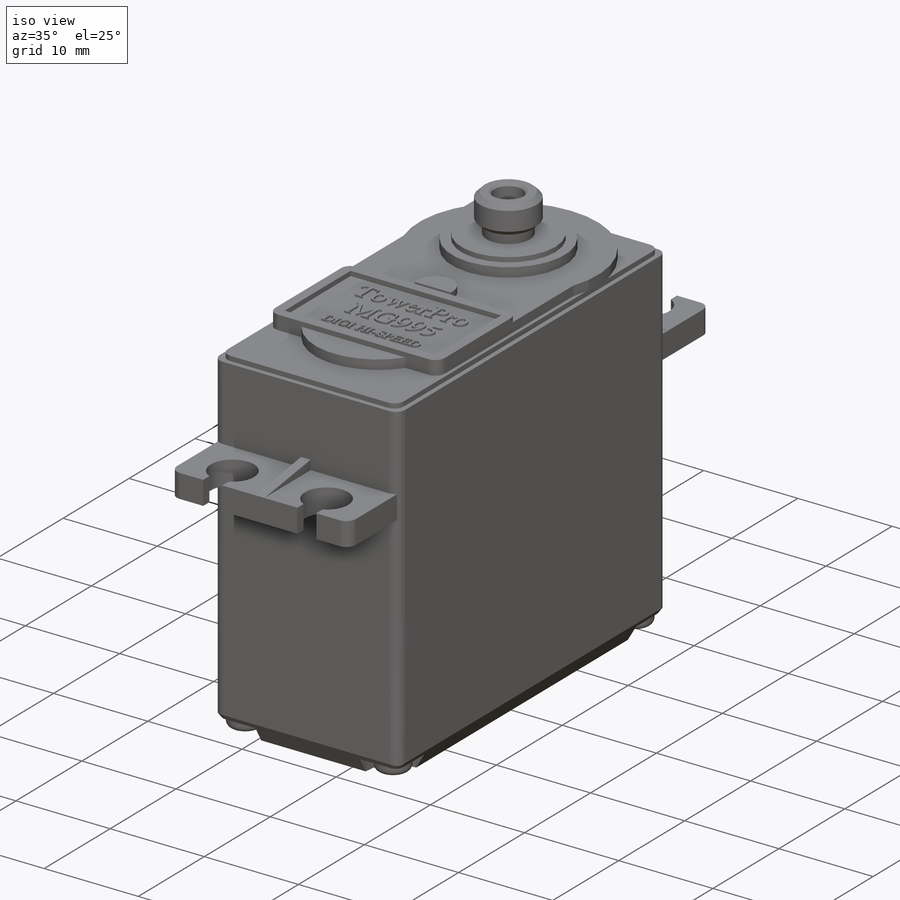
[diagram: iso view]
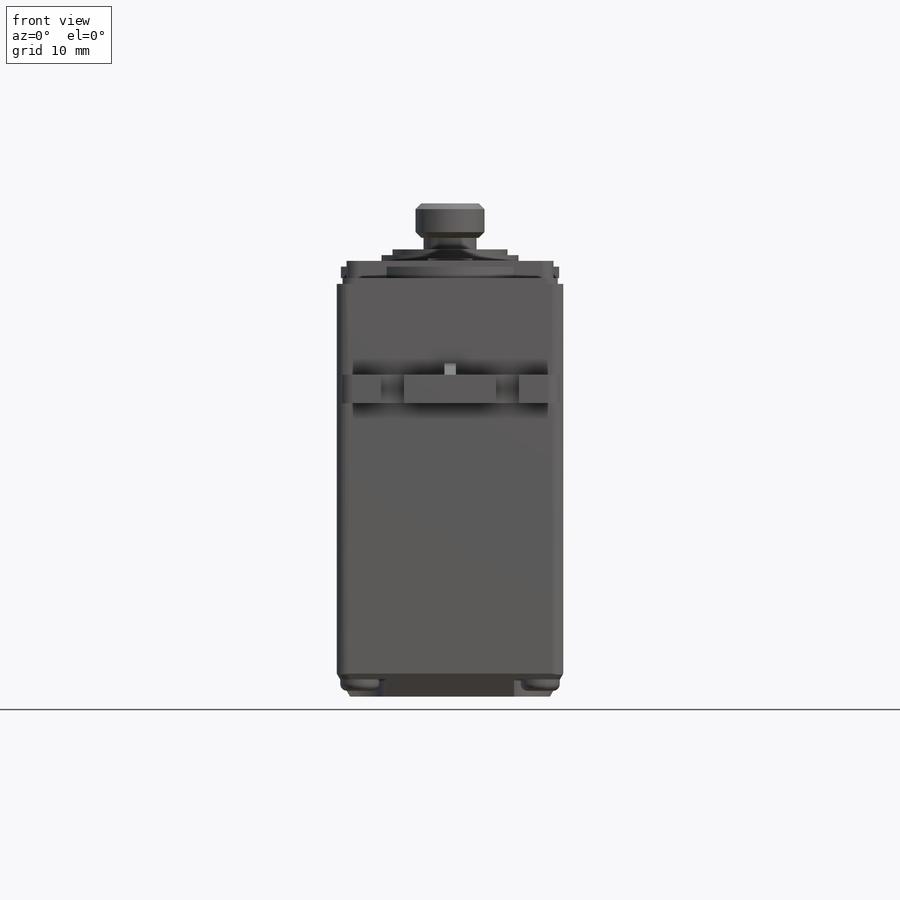
[diagram: front view]
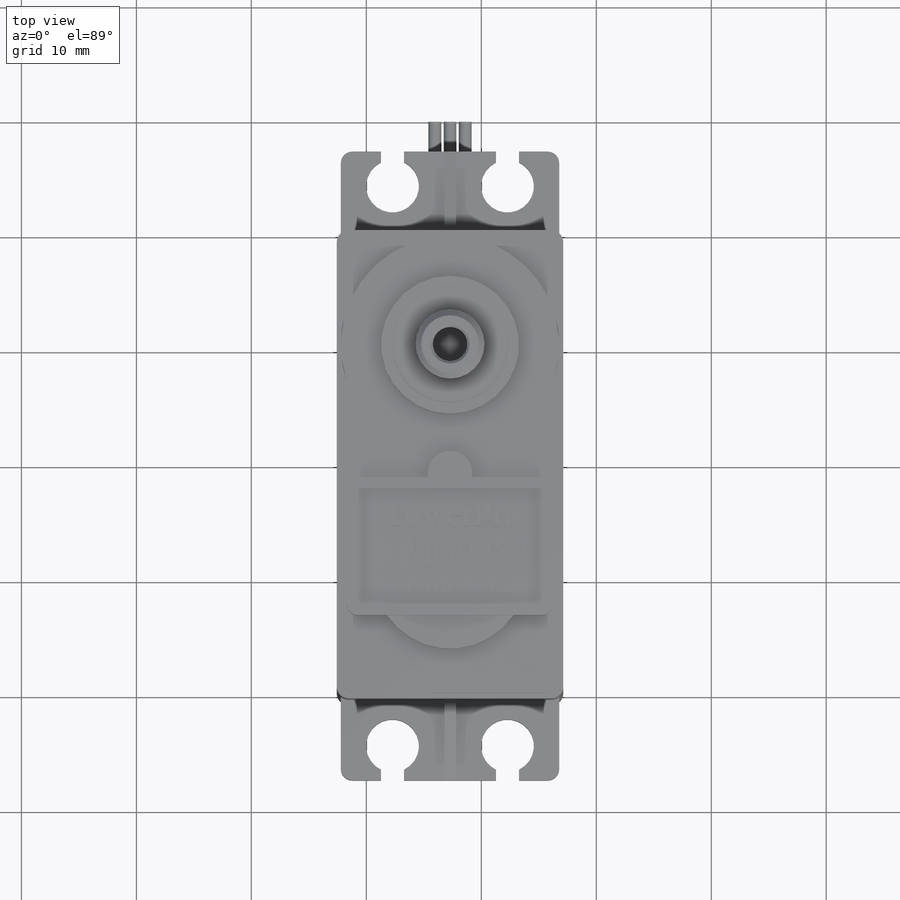
[diagram: top view]
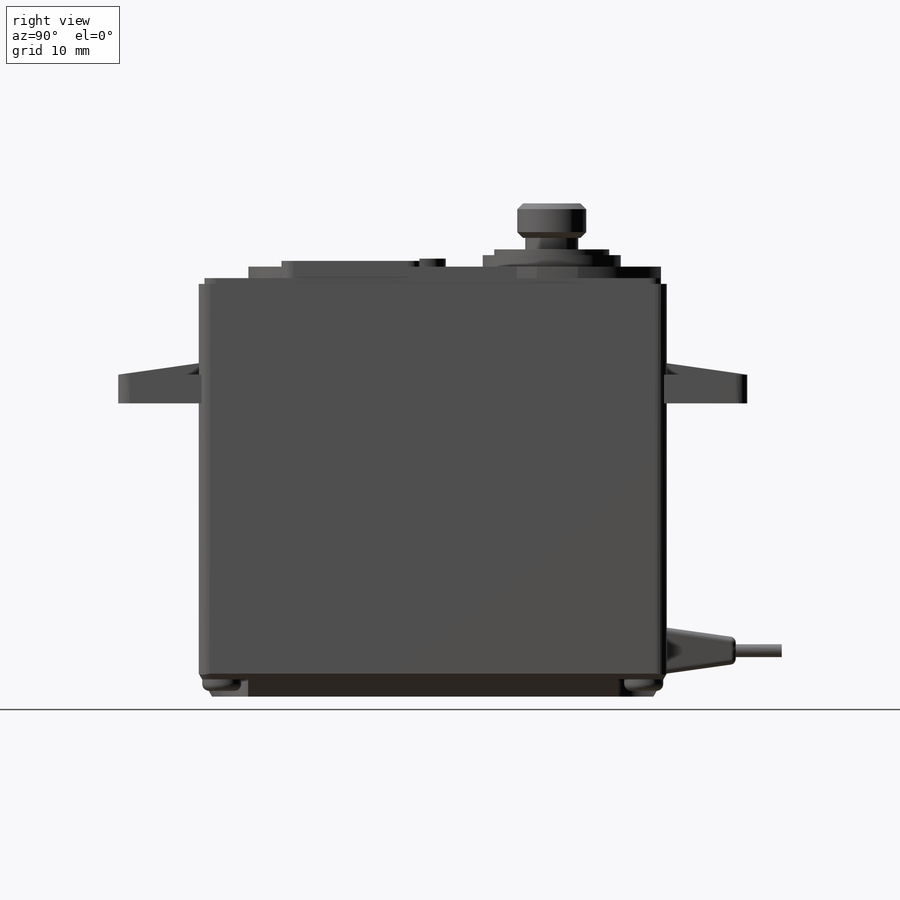
[diagram: right view]
SOLIDWORKS PART (.sldprt)
format: sldprt  version: not decoded by parser v0  size: 1,395,200 bytes
history: native  units: mm
features: sketch x25, extrude x13, cut_extrude x12, chamfer x7, fillet x6, plane x3, material x1 (+11 scaffold rows collapsed)
feature tree (78):
  scaffold x11  (default folders/planes/origin — collapsed)
  material  "Латунь"
  plane  "Спереди"
  plane  "Сверху"
  plane  "Справа"
  sketch  "Эскиз1"  dims[D1=42.9mm]
  extrude  "Вытянуть1"  Depth=40.7mm
  sketch  "Эскиз2"  dims[D1=2.0mm]
  chamfer  "Фаска2"  Distance=2mm Angle=30deg
  chamfer  "Фаска3"  Distance=2mm Angle=30deg
  chamfer  "Фаска5"  Distance=2mm Angle=30deg
  chamfer  "Фаска6"  Distance=2mm Angle=30deg
  sketch  "Эскиз9"  dims[D1=2.5mm]
  extrude  "Вытянуть10"  Depth=7mm
  sketch  "Эскиз15"  dims[c1.D1=90.0deg c2.D1=2.5mm]
  extrude  "Вытянуть14"  Depth=7mm
  sketch  "Эскиз21"  dims[D1=10.0mm]
  cut_extrude  "Вытянуть22"  Depth=1.5mm
  sketch  "Эскиз23"  dims[D1=1.0mm]
  cut_extrude  "Вытянуть23"  Depth=3mm
  sketch  "Эскиз27"  dims[D1=2.0mm]
  extrude  "Вытянуть26"  Depth=1mm
  fillet  "Скругление6"  Radius=0.6mm
  cut_extrude  "Вытянуть27"  Depth=4mm
  sketch  "Эскиз29"  dims[D1=~5.509266mm]
  cut_extrude  "Вытянуть28"  Depth=0.5mm
  sketch  "Эскиз30"  dims[D1=~6.955921mm]
  cut_extrude  "Вытянуть29"  Depth=1mm
  sketch  "Эскиз31"  dims[D1=33.0mm]
  cut_extrude  "Вытянуть30"  Depth=1mm
  sketch  "Эскиз32"
  cut_extrude  "Вытянуть31"  Depth=1mm
  sketch  "Эскиз33"  dims[D1=0.5mm]
  cut_extrude  "Вытянуть32"  Depth=0.5mm
  sketch  "Эскиз34"  dims[D1=9.0mm]
  extrude  "Вытянуть33"  Depth=1mm
  sketch  "Эскиз35"  dims[D1=10.0mm]
  extrude  "Вытянуть34"  Depth=0.5mm
  sketch  "Эскиз36"
  extrude  "Вытянуть35"  Depth=0.7mm
  sketch  "Эскиз37"
  sketch  "Эскиз38"
  cut_extrude  "Вытянуть36"  Depth=4mm
  sketch  "Эскиз39"  dims[D1=~1.240226mm]
  extrude  "Вытянуть37"  Depth=1mm
  sketch  "Эскиз40"  dims[D1=~3.290969mm]
  extrude  "Вытянуть38"  Depth=3mm
  chamfer  "Фаска7"  Distance=0.5mm Angle=45deg
  chamfer  "Фаска8"  Distance=0.5mm Angle=45deg
  sketch  "Эскиз42"  dims[D1=~0.654513mm]
  cut_extrude  "Вытянуть40"  Depth=6mm
  chamfer  "Фаска9"  Distance=0.2mm Angle=45deg
  fillet  "Скругление7"  Radius=1mm
  fillet  "Скругление9"  Radius=1mm
  fillet  "Скругление10"  Radius=1mm
  sketch  "Эскиз46"  dims[D1=4.0mm]
  extrude  "Вытянуть41"  Depth=6mm
  sketch  "Эскиз47"
  extrude  "Вытянуть42"  Depth=4mm
  fillet  "Скругление20"  Radius=0.5mm
  extrude  "Вытянуть43"  Depth=0.2mm
  sketch  "Эскиз49"  dims[D1=5.0mm]
  cut_extrude  "Вытянуть44"  [1 undecoded]
  sketch  "Эскиз51"  dims[D1=0.5mm]
  extrude  "Вытянуть45"  Depth=1mm
  sketch  "Эскиз52"
  cut_extrude  "Вытянуть46"  Depth=1mm
  fillet  "Скругление21"  Radius=1mm
decode coverage: 56 of 63 modeling features carry decoded parameters
note: ~ marks probable driven/reference dimensions
note: 1 parameter value undecoded
note: suppression state not decoded; provenance and decode notes live in map.json
